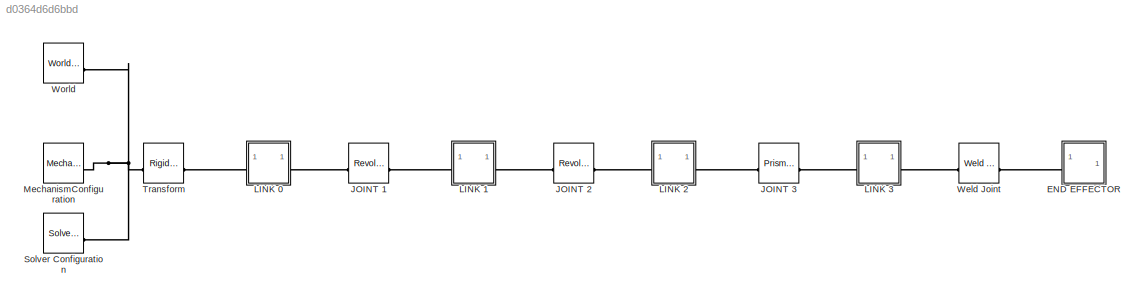
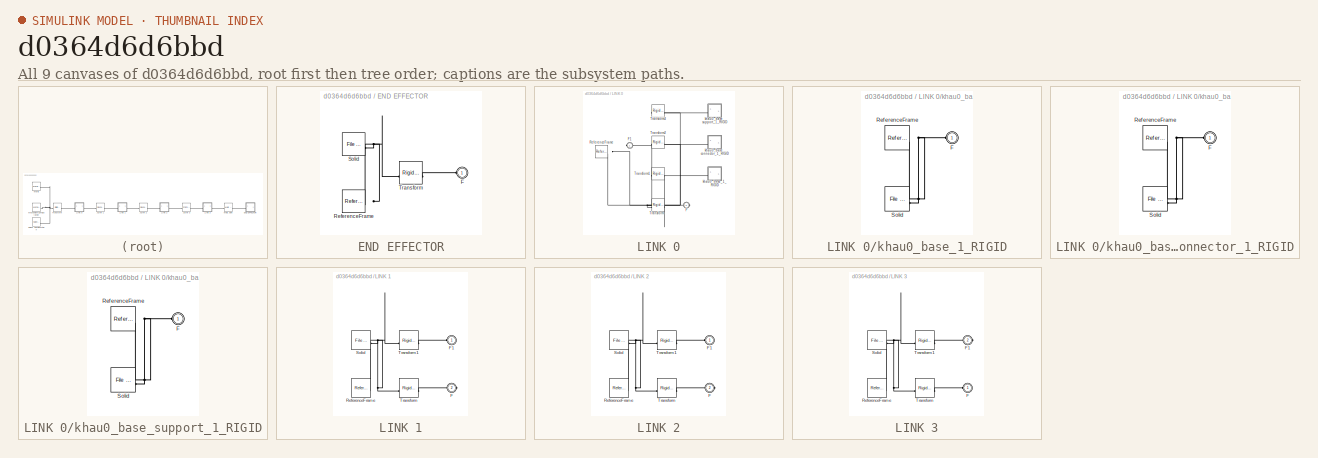
[diagram: thumbnail index - all 9 canvases of the model, root first then tree order]
MODEL slx_d0364d6d6bbd
KIND model
CONFIG AbsTol = auto
CONFIG EnableMultiTasking = off
CONFIG FixedStep = 0.001
CONFIG MaxStep = auto
CONFIG MinStep = auto
CONFIG RelTol = 1e-3
CONFIG SampleTimeConstraint = Unconstrained
CONFIG SolverName = ode4
CONFIG StartTime = 0.0
CONFIG StopTime = 10.0
WORKSPACE source: external: MATLAB File  (data not in archive)
BLOCK [SubSystem] END EFFECTOR
BLOCK [PMIOPort] END EFFECTOR/F
  Side = Left
BLOCK [Reference] END EFFECTOR/ReferenceFrame  REF=sm_lib/Frames and
Transforms/Reference
Frame
  SourceBlock = sm_lib/Frames and\nTransforms/Reference\nFrame
  SourceType = Reference\nFrame
BLOCK [Reference] END EFFECTOR/Solid  REF=sm_lib/Body Elements/File Solid
  SourceBlock = sm_lib/Body Elements/File Solid
  SourceType = File Solid
BLOCK [Reference] END EFFECTOR/Transform  REF=sm_lib/Frames and
Transforms/Rigid
Transform
  SourceBlock = sm_lib/Frames and\nTransforms/Rigid\nTransform
  SourceType = Rigid\nTransform
BLOCK [Reference] JOINT 1  REF=sm_lib/Joints/Revolute Joint
  SourceBlock = sm_lib/Joints/Revolute Joint
  SourceType = Revolute Joint
BLOCK [Reference] JOINT 2  REF=sm_lib/Joints/Revolute Joint
  SourceBlock = sm_lib/Joints/Revolute Joint
  SourceType = Revolute Joint
BLOCK [Reference] JOINT 3  REF=sm_lib/Joints/Prismatic
Joint
  SourceBlock = sm_lib/Joints/Prismatic\nJoint
  SourceType = Prismatic\nJoint
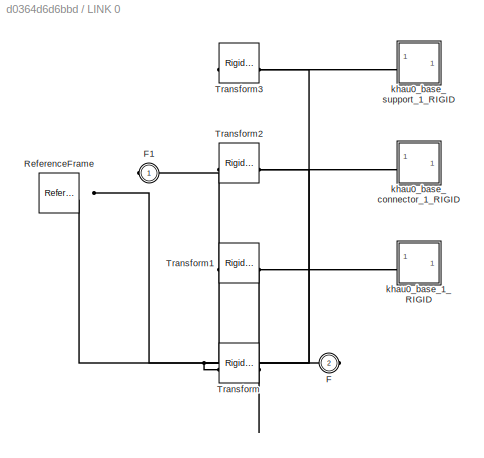
BLOCK [SubSystem] LINK 0
BLOCK [PMIOPort] LINK 0/F
  Port = 2
  Side = Right
BLOCK [PMIOPort] LINK 0/F1
  Side = Left
BLOCK [Reference] LINK 0/ReferenceFrame  REF=sm_lib/Frames and
Transforms/Reference
Frame
  SourceBlock = sm_lib/Frames and\nTransforms/Reference\nFrame
  SourceType = Reference\nFrame
BLOCK [Reference] LINK 0/Transform  REF=sm_lib/Frames and
Transforms/Rigid
Transform
  SourceBlock = sm_lib/Frames and\nTransforms/Rigid\nTransform
  SourceType = Rigid\nTransform
BLOCK [Reference] LINK 0/Transform1  REF=sm_lib/Frames and
Transforms/Rigid
Transform
  SourceBlock = sm_lib/Frames and\nTransforms/Rigid\nTransform
  SourceType = Rigid\nTransform
BLOCK [Reference] LINK 0/Transform2  REF=sm_lib/Frames and
Transforms/Rigid
Transform
  SourceBlock = sm_lib/Frames and\nTransforms/Rigid\nTransform
  SourceType = Rigid\nTransform
BLOCK [Reference] LINK 0/Transform3  REF=sm_lib/Frames and
Transforms/Rigid
Transform
  SourceBlock = sm_lib/Frames and\nTransforms/Rigid\nTransform
  SourceType = Rigid\nTransform
BLOCK [SubSystem] LINK 0/khau0_base_1_RIGID
BLOCK [PMIOPort] LINK 0/khau0_base_1_RIGID/F
  Side = Left
BLOCK [Reference] LINK 0/khau0_base_1_RIGID/ReferenceFrame  REF=sm_lib/Frames and
Transforms/Reference
Frame
  SourceBlock = sm_lib/Frames and\nTransforms/Reference\nFrame
  SourceType = Reference\nFrame
BLOCK [Reference] LINK 0/khau0_base_1_RIGID/Solid  REF=sm_lib/Body Elements/File Solid
  SourceBlock = sm_lib/Body Elements/File Solid
  SourceType = File Solid
BLOCK [SubSystem] LINK 0/khau0_base_connector_1_RIGID
BLOCK [PMIOPort] LINK 0/khau0_base_connector_1_RIGID/F
  Side = Left
BLOCK [Reference] LINK 0/khau0_base_connector_1_RIGID/ReferenceFrame  REF=sm_lib/Frames and
Transforms/Reference
Frame
  SourceBlock = sm_lib/Frames and\nTransforms/Reference\nFrame
  SourceType = Reference\nFrame
BLOCK [Reference] LINK 0/khau0_base_connector_1_RIGID/Solid  REF=sm_lib/Body Elements/File Solid
  SourceBlock = sm_lib/Body Elements/File Solid
  SourceType = File Solid
BLOCK [SubSystem] LINK 0/khau0_base_support_1_RIGID
BLOCK [PMIOPort] LINK 0/khau0_base_support_1_RIGID/F
  Side = Left
BLOCK [Reference] LINK 0/khau0_base_support_1_RIGID/ReferenceFrame  REF=sm_lib/Frames and
Transforms/Reference
Frame
  SourceBlock = sm_lib/Frames and\nTransforms/Reference\nFrame
  SourceType = Reference\nFrame
BLOCK [Reference] LINK 0/khau0_base_support_1_RIGID/Solid  REF=sm_lib/Body Elements/File Solid
  SourceBlock = sm_lib/Body Elements/File Solid
  SourceType = File Solid
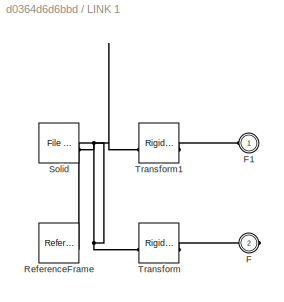
BLOCK [SubSystem] LINK 1
BLOCK [PMIOPort] LINK 1/F
  Port = 2
  Side = Right
BLOCK [PMIOPort] LINK 1/F1
  Side = Left
BLOCK [Reference] LINK 1/ReferenceFrame  REF=sm_lib/Frames and
Transforms/Reference
Frame
  SourceBlock = sm_lib/Frames and\nTransforms/Reference\nFrame
  SourceType = Reference\nFrame
BLOCK [Reference] LINK 1/Solid  REF=sm_lib/Body Elements/File Solid
  SourceBlock = sm_lib/Body Elements/File Solid
  SourceType = File Solid
BLOCK [Reference] LINK 1/Transform  REF=sm_lib/Frames and
Transforms/Rigid
Transform
  SourceBlock = sm_lib/Frames and\nTransforms/Rigid\nTransform
  SourceType = Rigid\nTransform
BLOCK [Reference] LINK 1/Transform1  REF=sm_lib/Frames and
Transforms/Rigid
Transform
  SourceBlock = sm_lib/Frames and\nTransforms/Rigid\nTransform
  SourceType = Rigid\nTransform
BLOCK [SubSystem] LINK 2
BLOCK [PMIOPort] LINK 2/F
  Port = 2
  Side = Right
BLOCK [PMIOPort] LINK 2/F1
  Side = Left
BLOCK [Reference] LINK 2/ReferenceFrame  REF=sm_lib/Frames and
Transforms/Reference
Frame
  SourceBlock = sm_lib/Frames and\nTransforms/Reference\nFrame
  SourceType = Reference\nFrame
BLOCK [Reference] LINK 2/Solid  REF=sm_lib/Body Elements/File Solid
  SourceBlock = sm_lib/Body Elements/File Solid
  SourceType = File Solid
BLOCK [Reference] LINK 2/Transform  REF=sm_lib/Frames and
Transforms/Rigid
Transform
  SourceBlock = sm_lib/Frames and\nTransforms/Rigid\nTransform
  SourceType = Rigid\nTransform
BLOCK [Reference] LINK 2/Transform1  REF=sm_lib/Frames and
Transforms/Rigid
Transform
  SourceBlock = sm_lib/Frames and\nTransforms/Rigid\nTransform
  SourceType = Rigid\nTransform
BLOCK [SubSystem] LINK 3
BLOCK [PMIOPort] LINK 3/F
  Side = Left
BLOCK [PMIOPort] LINK 3/F1
  Port = 2
  Side = Right
BLOCK [Reference] LINK 3/ReferenceFrame  REF=sm_lib/Frames and
Transforms/Reference
Frame
  SourceBlock = sm_lib/Frames and\nTransforms/Reference\nFrame
  SourceType = Reference\nFrame
BLOCK [Reference] LINK 3/Solid  REF=sm_lib/Body Elements/File Solid
  SourceBlock = sm_lib/Body Elements/File Solid
  SourceType = File Solid
BLOCK [Reference] LINK 3/Transform  REF=sm_lib/Frames and
Transforms/Rigid
Transform
  SourceBlock = sm_lib/Frames and\nTransforms/Rigid\nTransform
  SourceType = Rigid\nTransform
BLOCK [Reference] LINK 3/Transform1  REF=sm_lib/Frames and
Transforms/Rigid
Transform
  SourceBlock = sm_lib/Frames and\nTransforms/Rigid\nTransform
  SourceType = Rigid\nTransform
BLOCK [Reference] MechanismConfiguration  REF=sm_lib/Utilities/Mechanism
Configuration
  SourceBlock = sm_lib/Utilities/Mechanism\nConfiguration
  SourceType = Mechanism\nConfiguration
BLOCK [Reference] Solver Configuration  REF=nesl_utility/Solver
Configuration
  SourceBlock = nesl_utility/Solver\nConfiguration
  SourceType = Solver\nConfiguration
BLOCK [Reference] Transform  REF=sm_lib/Frames and
Transforms/Rigid
Transform
  SourceBlock = sm_lib/Frames and\nTransforms/Rigid\nTransform
  SourceType = Rigid\nTransform
BLOCK [Reference] Weld Joint  REF=sm_lib/Joints/Weld Joint
  SourceBlock = sm_lib/Joints/Weld Joint
  SourceType = Weld Joint
BLOCK [Reference] World  REF=sm_lib/Frames and
Transforms/World Frame
  SourceBlock = sm_lib/Frames and\nTransforms/World Frame
  SourceType = World Frame
PLINE END EFFECTOR/F:RConn1 -- END EFFECTOR/Transform:RConn1
PNET net1: END EFFECTOR/ReferenceFrame:RConn1 -- END EFFECTOR/Solid:RConn1 -- END EFFECTOR/Transform:LConn1
PLINE END EFFECTOR:LConn1 -- Weld Joint:RConn1
PLINE JOINT 1:LConn1 -- LINK 0:RConn1
PLINE JOINT 1:RConn1 -- LINK 1:LConn1
PLINE JOINT 2:LConn1 -- LINK 1:RConn1
PLINE JOINT 2:RConn1 -- LINK 2:LConn1
PLINE JOINT 3:LConn1 -- LINK 2:RConn1
PLINE JOINT 3:RConn1 -- LINK 3:LConn1
PNET net2: LINK 0/F1:RConn1 -- LINK 0/ReferenceFrame:RConn1 -- LINK 0/Transform1:LConn1 -- LINK 0/Transform2:LConn1 -- LINK 0/Transform3:LConn1 -- LINK 0/Transform:LConn1
PLINE LINK 0/F:RConn1 -- LINK 0/Transform:RConn1
PLINE LINK 0/Transform1:RConn1 -- LINK 0/khau0_base_1_RIGID:LConn1
PLINE LINK 0/Transform2:RConn1 -- LINK 0/khau0_base_connector_1_RIGID:LConn1
PLINE LINK 0/Transform3:RConn1 -- LINK 0/khau0_base_support_1_RIGID:LConn1
PNET net3: LINK 0/khau0_base_1_RIGID/F:RConn1 -- LINK 0/khau0_base_1_RIGID/ReferenceFrame:RConn1 -- LINK 0/khau0_base_1_RIGID/Solid:RConn1
PNET net4: LINK 0/khau0_base_connector_1_RIGID/F:RConn1 -- LINK 0/khau0_base_connector_1_RIGID/ReferenceFrame:RConn1 -- LINK 0/khau0_base_connector_1_RIGID/Solid:RConn1
PNET net5: LINK 0/khau0_base_support_1_RIGID/F:RConn1 -- LINK 0/khau0_base_support_1_RIGID/ReferenceFrame:RConn1 -- LINK 0/khau0_base_support_1_RIGID/Solid:RConn1
PLINE LINK 0:LConn1 -- Transform:RConn1
PLINE LINK 1/F1:RConn1 -- LINK 1/Transform1:RConn1
PLINE LINK 1/F:RConn1 -- LINK 1/Transform:RConn1
PNET net6: LINK 1/ReferenceFrame:RConn1 -- LINK 1/Solid:RConn1 -- LINK 1/Transform1:LConn1 -- LINK 1/Transform:LConn1
PLINE LINK 2/F1:RConn1 -- LINK 2/Transform1:RConn1
PLINE LINK 2/F:RConn1 -- LINK 2/Transform:RConn1
PNET net7: LINK 2/ReferenceFrame:RConn1 -- LINK 2/Solid:RConn1 -- LINK 2/Transform1:LConn1 -- LINK 2/Transform:LConn1
PLINE LINK 3/F1:RConn1 -- LINK 3/Transform1:RConn1
PLINE LINK 3/F:RConn1 -- LINK 3/Transform:RConn1
PNET net8: LINK 3/ReferenceFrame:RConn1 -- LINK 3/Solid:RConn1 -- LINK 3/Transform1:LConn1 -- LINK 3/Transform:LConn1
PLINE LINK 3:RConn1 -- Weld Joint:LConn1
PNET net9: MechanismConfiguration:RConn1 -- Solver Configuration:RConn1 -- Transform:LConn1 -- World:RConn1
note: PNET lines group multi-terminal physical nets as a canonical sorted terminal list (undirected conserving connections); 2-terminal nets keep the pairwise PLINE form
